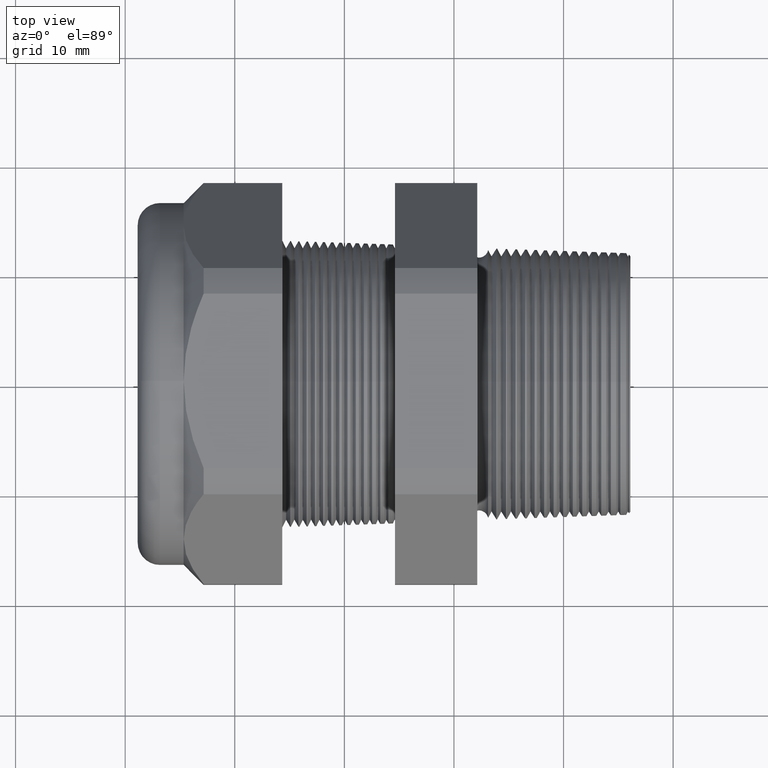
[diagram: clean part render]
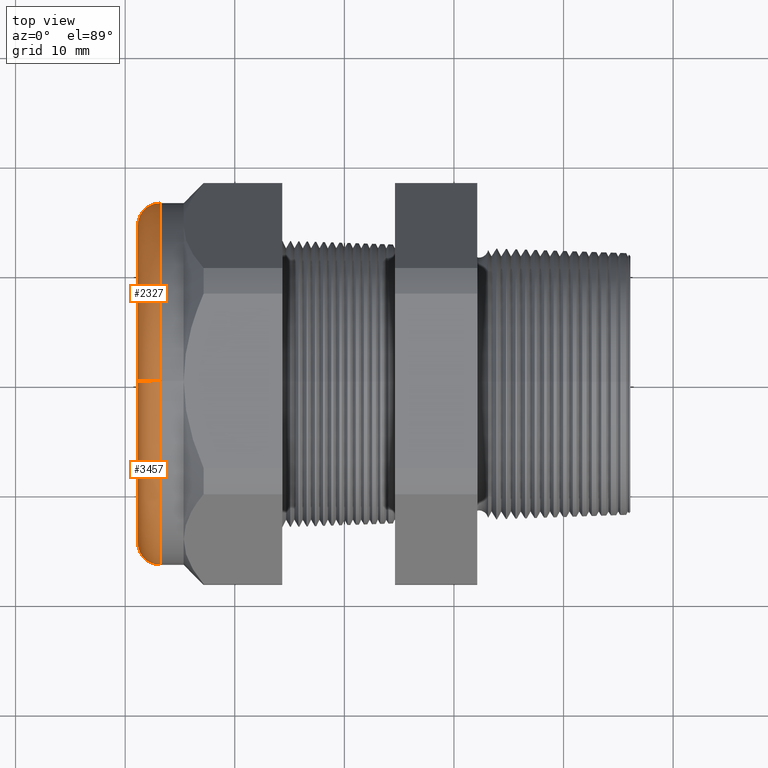
[diagram: same view with one multi-face feature highlighted, each face labeled with its STEP entity id]
A machine part, top view. The highlighted faces form ONE feature: a constant-radius fillet chain: 2 tangent blend faces with common blend radius 2.032 mm. The faces share edges in the B-rep.
Their STEP definitions:
[1] entity #2327 (Torus):
#2327 = ADVANCED_FACE ( 'NONE', ( #5087 ), #5085, .T. ) ;
#2334 = EDGE_CURVE ( 'NONE', #2339, #2345, #5139, .T. ) ;
#2336 = ORIENTED_EDGE ( 'NONE', *, *, #2334, .F. ) ;
#2338 = ORIENTED_EDGE ( 'NONE', *, *, #2340, .F. ) ;
#2339 = VERTEX_POINT ( 'NONE', #5128 ) ;
#2340 = EDGE_CURVE ( 'NONE', #2383, #2339, #5127, .T. ) ;
#2344 = ORIENTED_EDGE ( 'NONE', *, *, #2406, .T. ) ;
#2345 = VERTEX_POINT ( 'NONE', #5120 ) ;
#2383 = VERTEX_POINT ( 'NONE', #5238 ) ;
#2388 = VERTEX_POINT ( 'NONE', #5232 ) ;
#2406 = EDGE_CURVE ( 'NONE', #2388, #2345, #5297, .T. ) ;
#2410 = ORIENTED_EDGE ( 'NONE', *, *, #2411, .F. ) ;
#2411 = EDGE_CURVE ( 'NONE', #2388, #2383, #5280, .T. ) ;
#2412 = EDGE_LOOP ( 'NONE', ( #2410, #2344, #2336, #2338 ) ) ;
#5083 = DIRECTION ( 'NONE',  ( -1.000000000000000000, 0.0000000000000000000, 0.0000000000000000000 ) ) ;
#5084 = AXIS2_PLACEMENT_3D ( 'NONE', #5086, #5083, #5145 ) ;
#5085 = TOROIDAL_SURFACE ( 'NONE', #5084, 0.5699999999999999500, 0.08000000000000000200 ) ;
#5086 = CARTESIAN_POINT ( 'NONE',  ( -1.449999999999999700, 0.0000000000000000000, 0.0000000000000000000 ) ) ;
#5087 = FACE_OUTER_BOUND ( 'NONE', #2412, .T. ) ;
#5120 = CARTESIAN_POINT ( 'NONE',  ( -1.529999999999999800, 7.470345474798854000E-017, -0.5699999999999999500 ) ) ;
#5123 = DIRECTION ( 'NONE',  ( 0.0000000000000000000, 0.0000000000000000000, -1.000000000000000000 ) ) ;
#5124 = DIRECTION ( 'NONE',  ( 0.0000000000000000000, -1.000000000000000000, 0.0000000000000000000 ) ) ;
#5125 = CARTESIAN_POINT ( 'NONE',  ( -1.449999999999999700, 0.0000000000000000000, 0.5699999999999999500 ) ) ;
#5126 = AXIS2_PLACEMENT_3D ( 'NONE', #5125, #5124, #5123 ) ;
#5127 = CIRCLE ( 'NONE', #5126, 0.07999999999999996000 ) ;
#5128 = CARTESIAN_POINT ( 'NONE',  ( -1.529999999999999800, 0.0000000000000000000, 0.5699999999999999500 ) ) ;
#5135 = DIRECTION ( 'NONE',  ( 0.0000000000000000000, 0.0000000000000000000, 1.000000000000000000 ) ) ;
#5136 = DIRECTION ( 'NONE',  ( -1.000000000000000000, 0.0000000000000000000, 0.0000000000000000000 ) ) ;
#5137 = CARTESIAN_POINT ( 'NONE',  ( -1.529999999999999800, 0.0000000000000000000, 0.0000000000000000000 ) ) ;
#5138 = AXIS2_PLACEMENT_3D ( 'NONE', #5137, #5136, #5135 ) ;
#5139 = CIRCLE ( 'NONE', #5138, 0.5699999999999999500 ) ;
#5145 = DIRECTION ( 'NONE',  ( 0.0000000000000000000, 0.0000000000000000000, 1.000000000000000000 ) ) ;
#5232 = CARTESIAN_POINT ( 'NONE',  ( -1.449999999999999700, 0.0000000000000000000, -0.6499999999999999100 ) ) ;
#5238 = CARTESIAN_POINT ( 'NONE',  ( -1.449999999999999700, 7.960204194457794200E-017, 0.6499999999999999100 ) ) ;
#5276 = DIRECTION ( 'NONE',  ( 0.0000000000000000000, 0.0000000000000000000, 1.000000000000000000 ) ) ;
#5277 = DIRECTION ( 'NONE',  ( 1.000000000000000000, 0.0000000000000000000, 0.0000000000000000000 ) ) ;
#5278 = CARTESIAN_POINT ( 'NONE',  ( -1.449999999999999700, 0.0000000000000000000, 0.0000000000000000000 ) ) ;
#5279 = AXIS2_PLACEMENT_3D ( 'NONE', #5278, #5277, #5276 ) ;
#5280 = CIRCLE ( 'NONE', #5279, 0.6499999999999999100 ) ;
#5286 = DIRECTION ( 'NONE',  ( 0.0000000000000000000, -1.224646799147353900E-016, 1.000000000000000000 ) ) ;
#5287 = DIRECTION ( 'NONE',  ( 0.0000000000000000000, 1.000000000000000000, 1.224646799147353200E-016 ) ) ;
#5288 = CARTESIAN_POINT ( 'NONE',  ( -1.449999999999999700, 6.980486755139912600E-017, -0.5699999999999999500 ) ) ;
#5289 = AXIS2_PLACEMENT_3D ( 'NONE', #5288, #5287, #5286 ) ;
#5297 = CIRCLE ( 'NONE', #5289, 0.07999999999999996000 ) ;
[2] entity #3457 (Torus):
#1263 = DIRECTION ( 'NONE',  ( 0.0000000000000000000, 0.0000000000000000000, 1.000000000000000000 ) ) ;
#1264 = DIRECTION ( 'NONE',  ( -1.000000000000000000, 0.0000000000000000000, 0.0000000000000000000 ) ) ;
#1265 = AXIS2_PLACEMENT_3D ( 'NONE', #1272, #1264, #1263 ) ;
#1266 = TOROIDAL_SURFACE ( 'NONE', #1265, 0.5699999999999999500, 0.08000000000000000200 ) ;
#1267 = FACE_OUTER_BOUND ( 'NONE', #3405, .T. ) ;
#1272 = CARTESIAN_POINT ( 'NONE',  ( -1.449999999999999700, 0.0000000000000000000, 0.0000000000000000000 ) ) ;
#2301 = EDGE_CURVE ( 'NONE', #2383, #2388, #5076, .T. ) ;
#2339 = VERTEX_POINT ( 'NONE', #5128 ) ;
#2340 = EDGE_CURVE ( 'NONE', #2383, #2339, #5127, .T. ) ;
#2345 = VERTEX_POINT ( 'NONE', #5120 ) ;
#2383 = VERTEX_POINT ( 'NONE', #5238 ) ;
#2388 = VERTEX_POINT ( 'NONE', #5232 ) ;
#2406 = EDGE_CURVE ( 'NONE', #2388, #2345, #5297, .T. ) ;
#2468 = EDGE_CURVE ( 'NONE', #2345, #2339, #5423, .T. ) ;
#3405 = EDGE_LOOP ( 'NONE', ( #3458, #3459, #3460, #3461 ) ) ;
#3457 = ADVANCED_FACE ( 'NONE', ( #1267 ), #1266, .T. ) ;
#3458 = ORIENTED_EDGE ( 'NONE', *, *, #2406, .F. ) ;
#3459 = ORIENTED_EDGE ( 'NONE', *, *, #2301, .F. ) ;
#3460 = ORIENTED_EDGE ( 'NONE', *, *, #2340, .T. ) ;
#3461 = ORIENTED_EDGE ( 'NONE', *, *, #2468, .F. ) ;
#5072 = DIRECTION ( 'NONE',  ( 0.0000000000000000000, 0.0000000000000000000, 1.000000000000000000 ) ) ;
#5073 = DIRECTION ( 'NONE',  ( 1.000000000000000000, 0.0000000000000000000, 0.0000000000000000000 ) ) ;
#5074 = CARTESIAN_POINT ( 'NONE',  ( -1.449999999999999700, 0.0000000000000000000, 0.0000000000000000000 ) ) ;
#5075 = AXIS2_PLACEMENT_3D ( 'NONE', #5074, #5073, #5072 ) ;
#5076 = CIRCLE ( 'NONE', #5075, 0.6499999999999999100 ) ;
#5120 = CARTESIAN_POINT ( 'NONE',  ( -1.529999999999999800, 7.470345474798854000E-017, -0.5699999999999999500 ) ) ;
#5123 = DIRECTION ( 'NONE',  ( 0.0000000000000000000, 0.0000000000000000000, -1.000000000000000000 ) ) ;
#5124 = DIRECTION ( 'NONE',  ( 0.0000000000000000000, -1.000000000000000000, 0.0000000000000000000 ) ) ;
#5125 = CARTESIAN_POINT ( 'NONE',  ( -1.449999999999999700, 0.0000000000000000000, 0.5699999999999999500 ) ) ;
#5126 = AXIS2_PLACEMENT_3D ( 'NONE', #5125, #5124, #5123 ) ;
#5127 = CIRCLE ( 'NONE', #5126, 0.07999999999999996000 ) ;
#5128 = CARTESIAN_POINT ( 'NONE',  ( -1.529999999999999800, 0.0000000000000000000, 0.5699999999999999500 ) ) ;
#5232 = CARTESIAN_POINT ( 'NONE',  ( -1.449999999999999700, 0.0000000000000000000, -0.6499999999999999100 ) ) ;
#5238 = CARTESIAN_POINT ( 'NONE',  ( -1.449999999999999700, 7.960204194457794200E-017, 0.6499999999999999100 ) ) ;
#5286 = DIRECTION ( 'NONE',  ( 0.0000000000000000000, -1.224646799147353900E-016, 1.000000000000000000 ) ) ;
#5287 = DIRECTION ( 'NONE',  ( 0.0000000000000000000, 1.000000000000000000, 1.224646799147353200E-016 ) ) ;
#5288 = CARTESIAN_POINT ( 'NONE',  ( -1.449999999999999700, 6.980486755139912600E-017, -0.5699999999999999500 ) ) ;
#5289 = AXIS2_PLACEMENT_3D ( 'NONE', #5288, #5287, #5286 ) ;
#5297 = CIRCLE ( 'NONE', #5289, 0.07999999999999996000 ) ;
#5419 = DIRECTION ( 'NONE',  ( 0.0000000000000000000, 0.0000000000000000000, 1.000000000000000000 ) ) ;
#5420 = DIRECTION ( 'NONE',  ( -1.000000000000000000, 0.0000000000000000000, 0.0000000000000000000 ) ) ;
#5421 = CARTESIAN_POINT ( 'NONE',  ( -1.529999999999999800, 0.0000000000000000000, 0.0000000000000000000 ) ) ;
#5422 = AXIS2_PLACEMENT_3D ( 'NONE', #5421, #5420, #5419 ) ;
#5423 = CIRCLE ( 'NONE', #5422, 0.5699999999999999500 ) ;